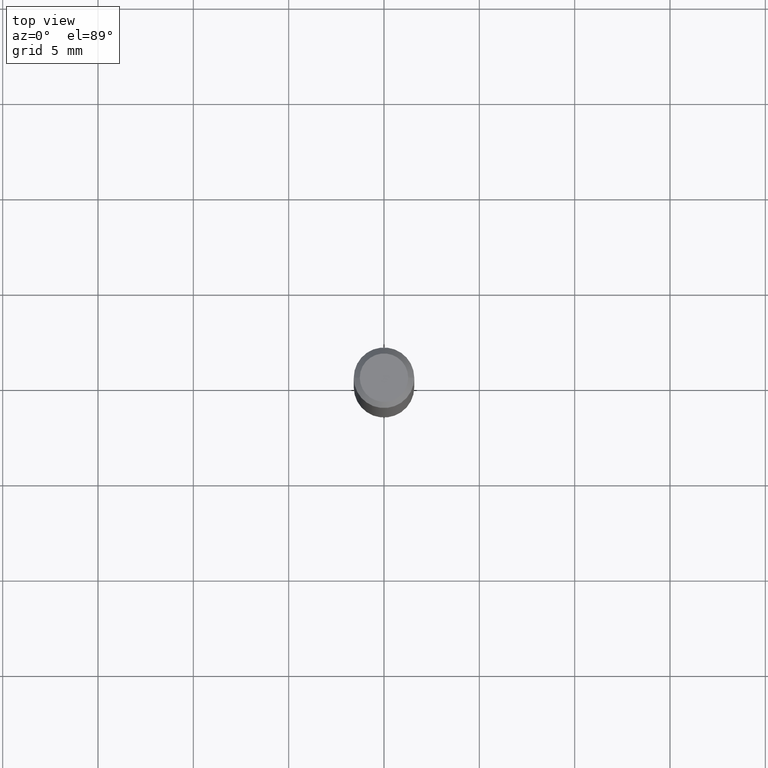
[diagram: clean part render]
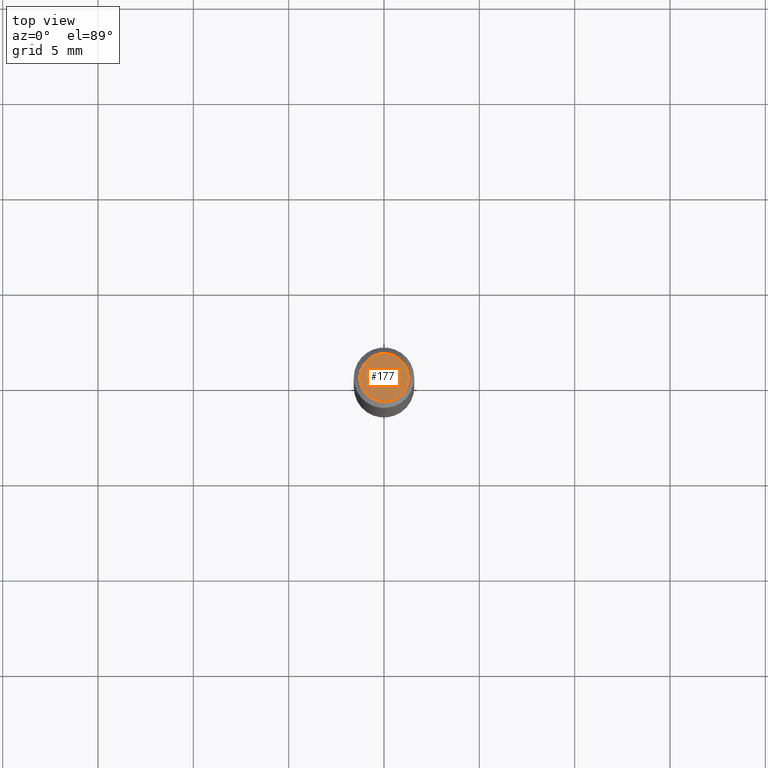
[diagram: same view with one face highlighted and labeled with its STEP entity id]
A machine part, top view. The second image highlights one B-rep face of the part: STEP entity #177.
In plain terms, the highlighted planar face has unit normal (0, -0, -1).
Its self-contained STEP definition (entity closure, byte-faithful):
#4 = ORIENTED_EDGE ( 'NONE', *, *, #130, .T. ) ;
#68 = EDGE_CURVE ( 'NONE', #142, #109, #406, .T. ) ;
#72 = DIRECTION ( 'NONE',  ( -2.445468806185136597E-29, 3.491481338843145583E-15, 1.000000000000000000 ) ) ;
#109 = VERTEX_POINT ( 'NONE', #286 ) ;
#130 = EDGE_CURVE ( 'NONE', #109, #142, #334, .T. ) ;
#142 = VERTEX_POINT ( 'NONE', #462 ) ;
#156 = FACE_OUTER_BOUND ( 'NONE', #162, .T. ) ;
#162 = EDGE_LOOP ( 'NONE', ( #226, #4 ) ) ;
#166 = CARTESIAN_POINT ( 'NONE',  ( -8.265746106709734507E-48, 1.180129479067563789E-33, 3.380025165646692144E-19 ) ) ;
#172 = AXIS2_PLACEMENT_3D ( 'NONE', #166, #72, #458 ) ;
#177 = ADVANCED_FACE ( 'NONE', ( #156 ), #198, .F. ) ;
#198 = PLANE ( 'NONE',  #209 ) ;
#202 = DIRECTION ( 'NONE',  ( -1.000000000000000000, 6.982962677686265922E-15, -4.876176775795935793E-29 ) ) ;
#209 = AXIS2_PLACEMENT_3D ( 'NONE', #280, #419, #202 ) ;
#226 = ORIENTED_EDGE ( 'NONE', *, *, #68, .T. ) ;
#277 = DIRECTION ( 'NONE',  ( -2.445468806185136597E-29, 3.491481338843145583E-15, 1.000000000000000000 ) ) ;
#280 = CARTESIAN_POINT ( 'NONE',  ( -4.132873053354867254E-48, 5.900647395337818946E-34, 1.690012582823346072E-19 ) ) ;
#286 = CARTESIAN_POINT ( 'NONE',  ( 0.04999999999999999584, -4.077247707424184705E-16, 3.380025165673154903E-19 ) ) ;
#334 = CIRCLE ( 'NONE', #461, 0.04999999999999999584 ) ;
#357 = CARTESIAN_POINT ( 'NONE',  ( -8.265746106709734507E-48, 1.180129479067563789E-33, 3.380025165646692144E-19 ) ) ;
#406 = CIRCLE ( 'NONE', #172, 0.04999999999999999584 ) ;
#415 = DIRECTION ( 'NONE',  ( 1.000000000000000000, -6.982962677686265922E-15, 4.876194921942043128E-29 ) ) ;
#419 = DIRECTION ( 'NONE',  ( 2.438088387897960049E-29, -3.491481338843145188E-15, -1.000000000000000000 ) ) ;
#458 = DIRECTION ( 'NONE',  ( 1.000000000000000000, -6.982962677686265922E-15, 4.876194921942043128E-29 ) ) ;
#461 = AXIS2_PLACEMENT_3D ( 'NONE', #357, #277, #415 ) ;
#462 = CARTESIAN_POINT ( 'NONE',  ( -0.04999999999999999584, 3.709698922520826725E-16, 3.380025165621512536E-19 ) ) ;